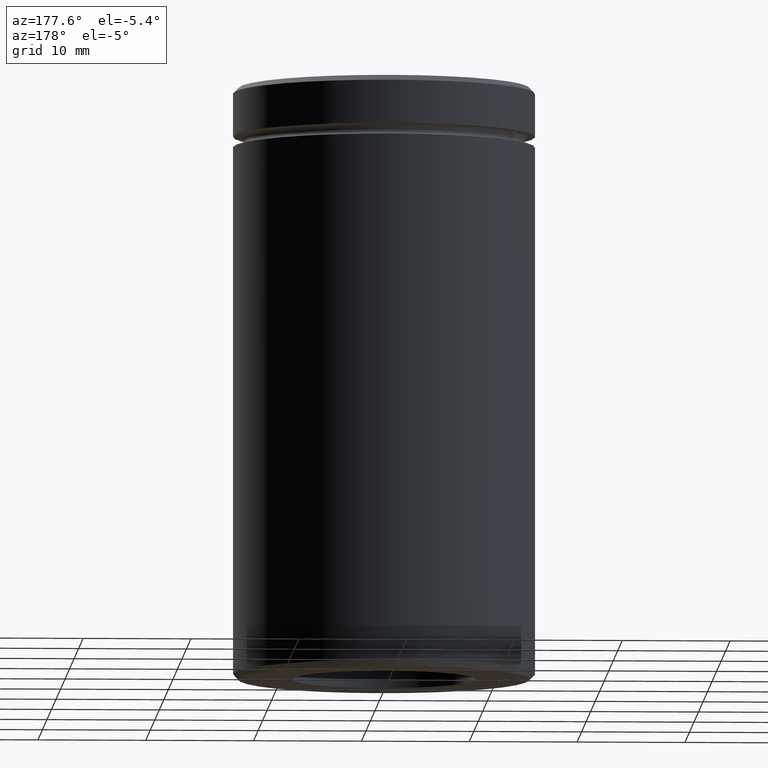
[diagram: clean part render]
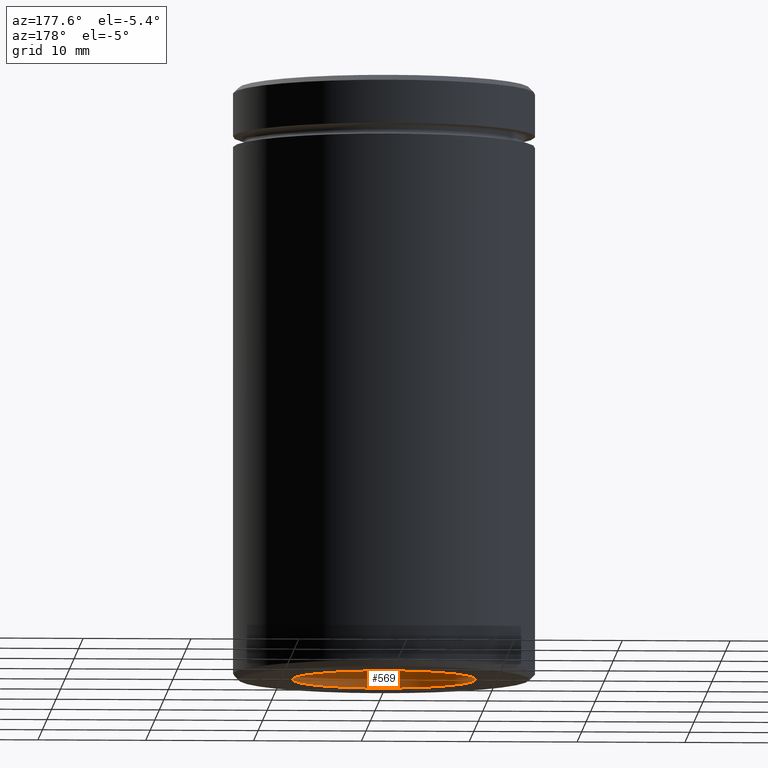
[diagram: same view with one face highlighted and labeled with its STEP entity id]
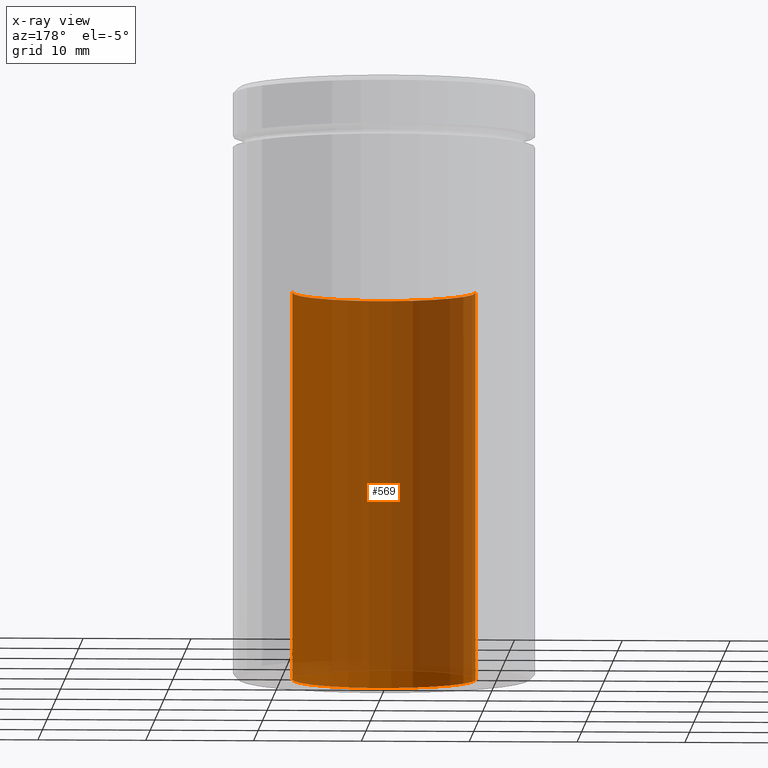
[diagram: x-ray of the same camera — body ghosted, the highlighted face saturated]
A machine part, auxiliary view. The second image highlights one B-rep face of the part: STEP entity #569.
The next image is the same camera in x-ray: the body ghosted, the highlighted face saturated — about 96% of this face is hidden behind the body in this view.
In plain terms, the highlighted cylindrical surface (partial cylindrical patch) has radius 8.5 mm, axis along (-0, -0, -1).
Its self-contained STEP definition (entity closure, byte-faithful):
#5 = CARTESIAN_POINT ( 'NONE',  ( 0.000000000000000000, 0.000000000000000000, -19.00000000000000355 ) ) ;
#8 = CARTESIAN_POINT ( 'NONE',  ( -8.500000000000000000, 0.000000000000000000, -19.00000000000000355 ) ) ;
#49 = VECTOR ( 'NONE', #290, 1000.000000000000000 ) ;
#54 = CARTESIAN_POINT ( 'NONE',  ( 8.500000000000000000, 1.040949779275250140E-15, -55.00000000000000000 ) ) ;
#75 = CARTESIAN_POINT ( 'NONE',  ( 8.500000000000000000, 1.040949779275250140E-15, -19.00000000000000355 ) ) ;
#80 = DIRECTION ( 'NONE',  ( -0.000000000000000000, -0.000000000000000000, -1.000000000000000000 ) ) ;
#87 = CYLINDRICAL_SURFACE ( 'NONE', #351, 8.500000000000000000 ) ;
#91 = CIRCLE ( 'NONE', #137, 8.500000000000000000 ) ;
#103 = LINE ( 'NONE', #75, #425 ) ;
#122 = CARTESIAN_POINT ( 'NONE',  ( 0.000000000000000000, 0.000000000000000000, -55.00000000000000000 ) ) ;
#124 = FACE_OUTER_BOUND ( 'NONE', #398, .T. ) ;
#137 = AXIS2_PLACEMENT_3D ( 'NONE', #5, #311, #564 ) ;
#138 = VERTEX_POINT ( 'NONE', #54 ) ;
#141 = EDGE_CURVE ( 'NONE', #356, #439, #186, .T. ) ;
#142 = ORIENTED_EDGE ( 'NONE', *, *, #303, .T. ) ;
#167 = DIRECTION ( 'NONE',  ( -0.000000000000000000, -0.000000000000000000, -1.000000000000000000 ) ) ;
#186 = LINE ( 'NONE', #528, #49 ) ;
#196 = DIRECTION ( 'NONE',  ( 0.000000000000000000, 0.000000000000000000, -1.000000000000000000 ) ) ;
#204 = CIRCLE ( 'NONE', #275, 8.500000000000000000 ) ;
#246 = DIRECTION ( 'NONE',  ( -1.000000000000000000, 0.000000000000000000, 0.000000000000000000 ) ) ;
#253 = DIRECTION ( 'NONE',  ( -1.000000000000000000, 0.000000000000000000, 0.000000000000000000 ) ) ;
#255 = CARTESIAN_POINT ( 'NONE',  ( -8.500000000000000000, 0.000000000000000000, -55.00000000000000000 ) ) ;
#275 = AXIS2_PLACEMENT_3D ( 'NONE', #122, #196, #246 ) ;
#290 = DIRECTION ( 'NONE',  ( -0.000000000000000000, -0.000000000000000000, -1.000000000000000000 ) ) ;
#299 = ORIENTED_EDGE ( 'NONE', *, *, #514, .F. ) ;
#303 = EDGE_CURVE ( 'NONE', #477, #138, #103, .T. ) ;
#311 = DIRECTION ( 'NONE',  ( 0.000000000000000000, 0.000000000000000000, -1.000000000000000000 ) ) ;
#351 = AXIS2_PLACEMENT_3D ( 'NONE', #416, #167, #253 ) ;
#356 = VERTEX_POINT ( 'NONE', #8 ) ;
#398 = EDGE_LOOP ( 'NONE', ( #299, #142, #487, #531 ) ) ;
#416 = CARTESIAN_POINT ( 'NONE',  ( 0.000000000000000000, 0.000000000000000000, -19.00000000000000355 ) ) ;
#425 = VECTOR ( 'NONE', #80, 1000.000000000000000 ) ;
#439 = VERTEX_POINT ( 'NONE', #255 ) ;
#465 = EDGE_CURVE ( 'NONE', #138, #439, #204, .T. ) ;
#477 = VERTEX_POINT ( 'NONE', #548 ) ;
#487 = ORIENTED_EDGE ( 'NONE', *, *, #465, .T. ) ;
#514 = EDGE_CURVE ( 'NONE', #477, #356, #91, .T. ) ;
#528 = CARTESIAN_POINT ( 'NONE',  ( -8.500000000000000000, 0.000000000000000000, -19.00000000000000355 ) ) ;
#531 = ORIENTED_EDGE ( 'NONE', *, *, #141, .F. ) ;
#548 = CARTESIAN_POINT ( 'NONE',  ( 8.500000000000000000, 1.040949779275250140E-15, -19.00000000000000355 ) ) ;
#564 = DIRECTION ( 'NONE',  ( -1.000000000000000000, 0.000000000000000000, 0.000000000000000000 ) ) ;
#569 = ADVANCED_FACE ( 'NONE', ( #124 ), #87, .F. ) ;